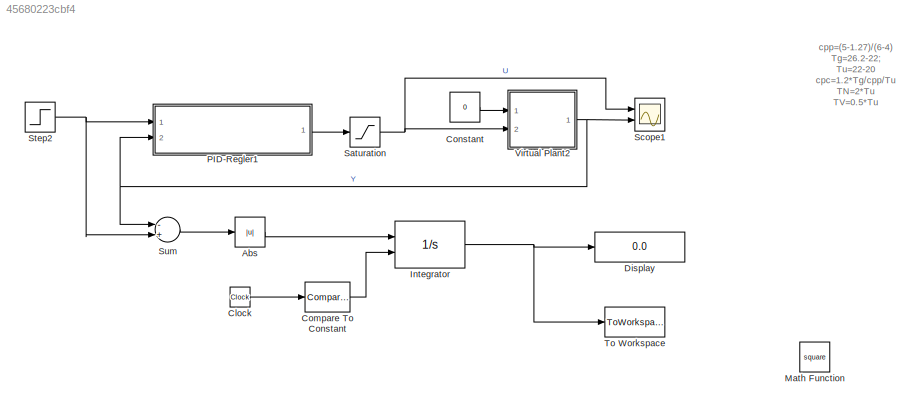
MODEL slx_45680223cbf4
KIND model
CONFIG AbsTol = auto
CONFIG FixedStep = 0.1
CONFIG MaxStep = auto
CONFIG MinStep = auto
CONFIG RelTol = 1e-3
CONFIG SampleTimeConstraint = Unconstrained
CONFIG Solver = ode1
CONFIG SolverMode = Auto
CONFIG SolverName = ode1
CONFIG StartTime = 0.0
CONFIG StopTime = 180
BLOCK [Abs] Abs
  SaturateOnIntegerOverflow = off
BLOCK [Clock] Clock
BLOCK [Reference] Compare To Constant  REF=simulink/Logic and Bit
Operations/Compare
To Constant
  Ports = [1, 1]
  SourceBlock = simulink/Logic and Bit\nOperations/Compare\nTo Constant
  SourceType = Compare To Constant
BLOCK [Constant] Constant
  Value = 0
BLOCK [Display] Display
  Decimation = 1
  Ports = [1]
BLOCK [Integrator] Integrator
  ExternalReset = rising
  Ports = [2, 1]
BLOCK [Math] Math Function
  Commented = through
  Operator = square
  Ports = [1, 1]
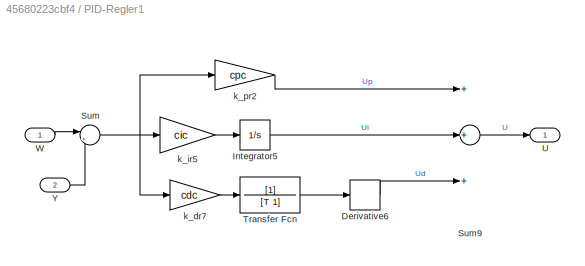
BLOCK [SubSystem] PID-Regler1
  Ports = [2, 1]
  RequestExecContextInheritance = off
  Variant = off
BLOCK [Derivative] PID-Regler1/Derivative6
BLOCK [Integrator] PID-Regler1/Integrator5
  Ports = [1, 1]
BLOCK [Sum] PID-Regler1/Sum
  IconShape = round
  InputSameDT = off
  Inputs = |+-
  OutDataTypeStr = Inherit: Inherit via internal rule
  Ports = [2, 1]
  SaturateOnIntegerOverflow = off
BLOCK [Sum] PID-Regler1/Sum9
  InputSameDT = off
  Inputs = +++
  OutDataTypeStr = Inherit: Inherit via internal rule
  Ports = [3, 1]
  SaturateOnIntegerOverflow = off
BLOCK [TransferFcn] PID-Regler1/Transfer Fcn
  Denominator = [T 1]
BLOCK [Outport] PID-Regler1/U
  IconDisplay = Port number
BLOCK [Inport] PID-Regler1/W
  IconDisplay = Port number
BLOCK [Inport] PID-Regler1/Y
  IconDisplay = Port number
  Port = 2
BLOCK [Gain] PID-Regler1/k_dr7
  Gain = cdc
  OutDataTypeStr = Inherit: Inherit via internal rule
  ParamDataTypeStr = Inherit: Inherit via internal rule
  SaturateOnIntegerOverflow = off
BLOCK [Gain] PID-Regler1/k_ir5
  Gain = cic
  OutDataTypeStr = Inherit: Inherit via internal rule
  ParamDataTypeStr = Inherit: Inherit via internal rule
  SaturateOnIntegerOverflow = off
BLOCK [Gain] PID-Regler1/k_pr2
  Gain = cpc
  OutDataTypeStr = Inherit: Inherit via internal rule
  ParamDataTypeStr = Inherit: Inherit via internal rule
  SaturateOnIntegerOverflow = off
BLOCK [Saturate] Saturation
  InputPortMap = u0
  LowerLimit = 4.5
  Ports = [1, 1]
  UpperLimit = 7.5
BLOCK [Scope] Scope1
  NumInputPorts = 2
  Ports = [2]
  ScopeSpecificationString = Simulink.scopes.TimeScopeBlockCfg('CurrentConfiguration', extmgr.ConfigurationSet(extmgr.Configuration('Core','General UI',true),extmgr.Configuration('Core','Source UI',true),extmgr.Configuration('Sources','WiredSimulink',true,'DataLoggingVariableName','S','DataLogging',true,'DataLoggingSaveFormat','StructureWithTime'),extmgr.Configuration('Visuals','Time Domain',true,'SerializedDisplays',{struct(...<+1789ch>
BLOCK [Step] Step2
  After = 6
  AttributesFormatString = Start Value=%<Before>\nStep Time=%<Time>\nFinal Vlaue=%<After>
  Before = 4
  SampleTime = 0
  Time = 100
BLOCK [Sum] Sum
  InputSameDT = off
  Inputs = -+
  OutDataTypeStr = Inherit: Inherit via internal rule
  Ports = [2, 1]
  SaturateOnIntegerOverflow = off
BLOCK [ToWorkspace] To Workspace
  FixptAsFi = on
  MaxDataPoints = 1
  Ports = [1]
  SampleTime = -1
  Save2DSignal = 3-D array (concatenate along third dimension)
  VariableName = sae
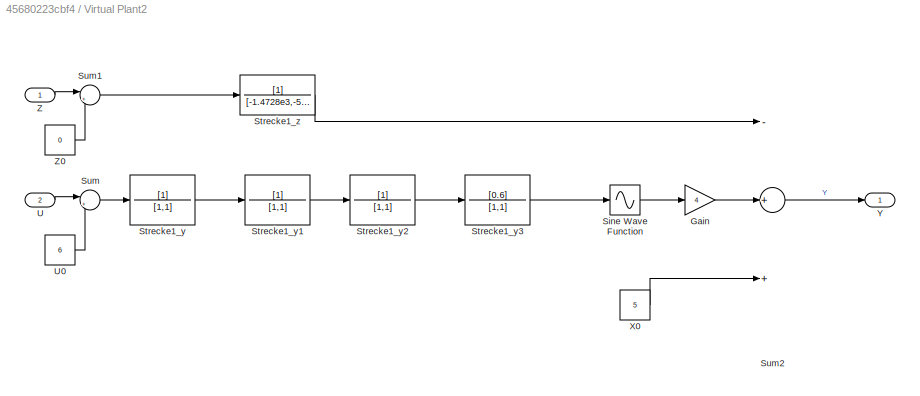
BLOCK [SubSystem] Virtual Plant2
  Ports = [2, 1]
  RequestExecContextInheritance = off
  Variant = off
BLOCK [Gain] Virtual Plant2/Gain
  Gain = 4
  OutDataTypeStr = Inherit: Inherit via internal rule
  ParamDataTypeStr = Inherit: Inherit via internal rule
  SaturateOnIntegerOverflow = off
BLOCK [Sin] Virtual Plant2/Sine Wave Function
  Ports = [1, 1]
  SampleTime = 0
  TimeSource = Use external signal
BLOCK [TransferFcn] Virtual Plant2/Strecke1_y
  Denominator = [1,1]
BLOCK [TransferFcn] Virtual Plant2/Strecke1_y1
  Denominator = [1,1]
BLOCK [TransferFcn] Virtual Plant2/Strecke1_y2
  Denominator = [1,1]
BLOCK [TransferFcn] Virtual Plant2/Strecke1_y3
  Denominator = [1,1]
  Numerator = [0.6]
BLOCK [TransferFcn] Virtual Plant2/Strecke1_z
  Denominator = [-1.4728e3,-534.157,-137.5577,-4.4778]
BLOCK [Sum] Virtual Plant2/Sum
  IconShape = round
  InputSameDT = off
  Inputs = |+-
  OutDataTypeStr = Inherit: Inherit via internal rule
  Ports = [2, 1]
  SaturateOnIntegerOverflow = off
BLOCK [Sum] Virtual Plant2/Sum1
  IconShape = round
  InputSameDT = off
  Inputs = |+-
  OutDataTypeStr = Inherit: Inherit via internal rule
  Ports = [2, 1]
  SaturateOnIntegerOverflow = off
BLOCK [Sum] Virtual Plant2/Sum2
  InputSameDT = off
  Inputs = -++
  OutDataTypeStr = Inherit: Inherit via internal rule
  Ports = [3, 1]
  SaturateOnIntegerOverflow = off
BLOCK [Inport] Virtual Plant2/U
  IconDisplay = Port number
  Port = 2
BLOCK [Constant] Virtual Plant2/U0
  Value = 6
BLOCK [Constant] Virtual Plant2/X0
  Value = 5
BLOCK [Outport] Virtual Plant2/Y
  IconDisplay = Port number
BLOCK [Inport] Virtual Plant2/Z
  IconDisplay = Port number
BLOCK [Constant] Virtual Plant2/Z0
  Value = 0
ANNOTATION (root): cpp=(5-1.27)/(6-4) Tg=26.2-22; Tu=22-20 cpc=1.2*Tg/cpp/Tu TN=2*Tu TV=0.5*Tu cic=cpc/TN cdc=cpc*TV
LINE Abs:1 -> Integrator:1
LINE Clock:1 -> Compare To Constant:1
LINE Compare To Constant:1 -> Integrator:2
LINE Constant:1 -> Virtual Plant2:1
NET Integrator:1 -> Display:1, To Workspace:1
LINE PID-Regler1/Derivative6:1 -> PID-Regler1/Sum9:3
LINE PID-Regler1/Integrator5:1 -> PID-Regler1/Sum9:2
LINE PID-Regler1/Sum9:1 -> PID-Regler1/U:1
NET PID-Regler1/Sum:1 -> PID-Regler1/k_dr7:1, PID-Regler1/k_ir5:1, PID-Regler1/k_pr2:1
LINE PID-Regler1/Transfer Fcn:1 -> PID-Regler1/Derivative6:1
LINE PID-Regler1/W:1 -> PID-Regler1/Sum:1
LINE PID-Regler1/Y:1 -> PID-Regler1/Sum:2
LINE PID-Regler1/k_dr7:1 -> PID-Regler1/Transfer Fcn:1
LINE PID-Regler1/k_ir5:1 -> PID-Regler1/Integrator5:1
LINE PID-Regler1/k_pr2:1 -> PID-Regler1/Sum9:1
LINE PID-Regler1:1 -> Saturation:1
NET Saturation:1 -> Scope1:1, Virtual Plant2:2
NET Step2:1 -> PID-Regler1:1, Sum:2
LINE Sum:1 -> Abs:1
LINE Virtual Plant2/Gain:1 -> Virtual Plant2/Sum2:2
LINE Virtual Plant2/Sine Wave Function:1 -> Virtual Plant2/Gain:1
LINE Virtual Plant2/Strecke1_y1:1 -> Virtual Plant2/Strecke1_y2:1
LINE Virtual Plant2/Strecke1_y2:1 -> Virtual Plant2/Strecke1_y3:1
LINE Virtual Plant2/Strecke1_y3:1 -> Virtual Plant2/Sine Wave Function:1
LINE Virtual Plant2/Strecke1_y:1 -> Virtual Plant2/Strecke1_y1:1
LINE Virtual Plant2/Strecke1_z:1 -> Virtual Plant2/Sum2:1
LINE Virtual Plant2/Sum1:1 -> Virtual Plant2/Strecke1_z:1
LINE Virtual Plant2/Sum2:1 -> Virtual Plant2/Y:1
LINE Virtual Plant2/Sum:1 -> Virtual Plant2/Strecke1_y:1
LINE Virtual Plant2/U0:1 -> Virtual Plant2/Sum:2
LINE Virtual Plant2/U:1 -> Virtual Plant2/Sum:1
LINE Virtual Plant2/X0:1 -> Virtual Plant2/Sum2:3
LINE Virtual Plant2/Z0:1 -> Virtual Plant2/Sum1:2
LINE Virtual Plant2/Z:1 -> Virtual Plant2/Sum1:1
NET Virtual Plant2:1 -> PID-Regler1:2, Scope1:2, Sum:1
note: NET lines group one-source signal fan-out (src -> all destinations, sorted); 1:1 wires keep LINE
